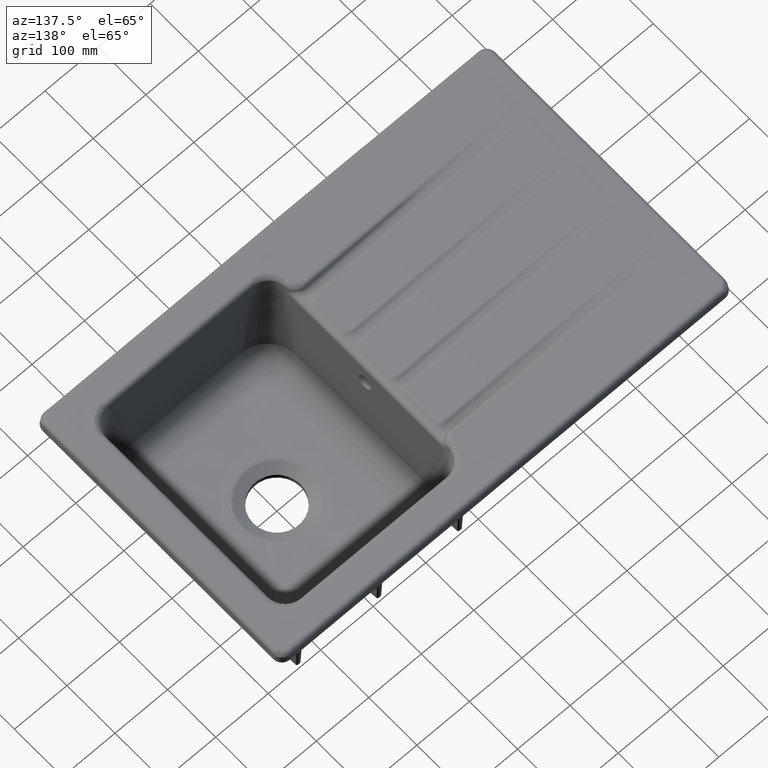
[diagram: clean part render]
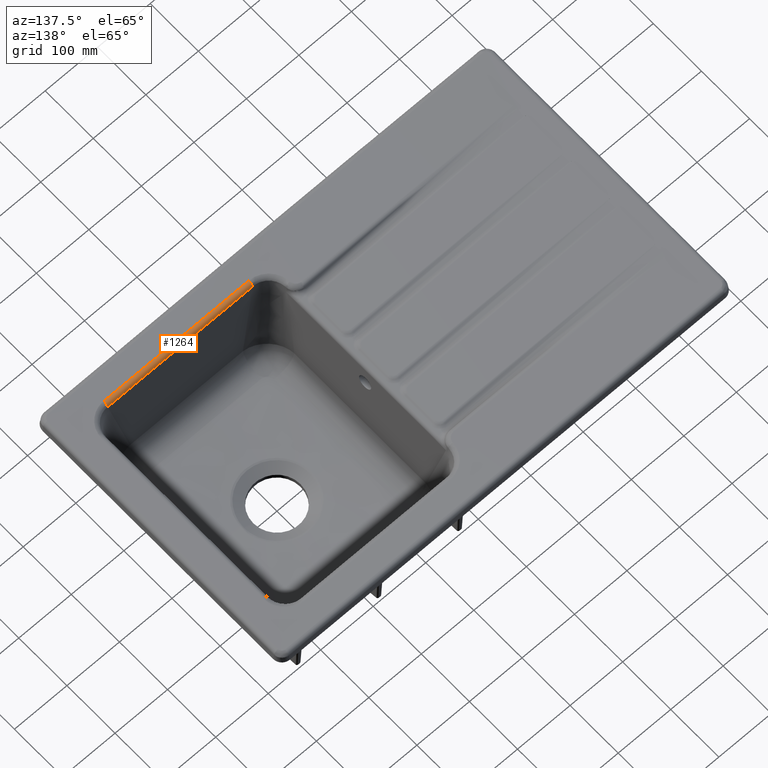
[diagram: same view with one face highlighted and labeled with its STEP entity id]
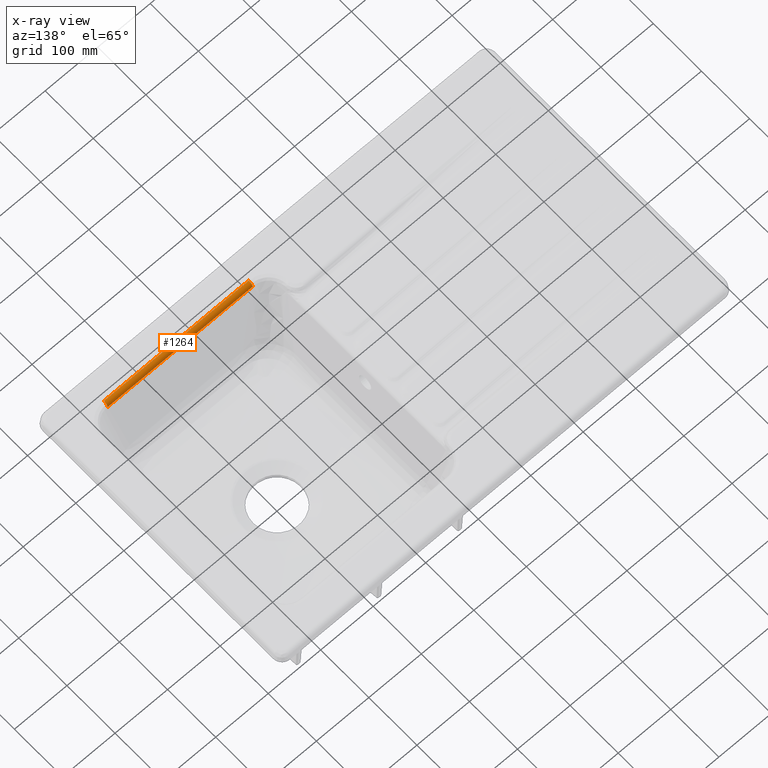
[diagram: x-ray of the same camera — body ghosted, the highlighted face saturated]
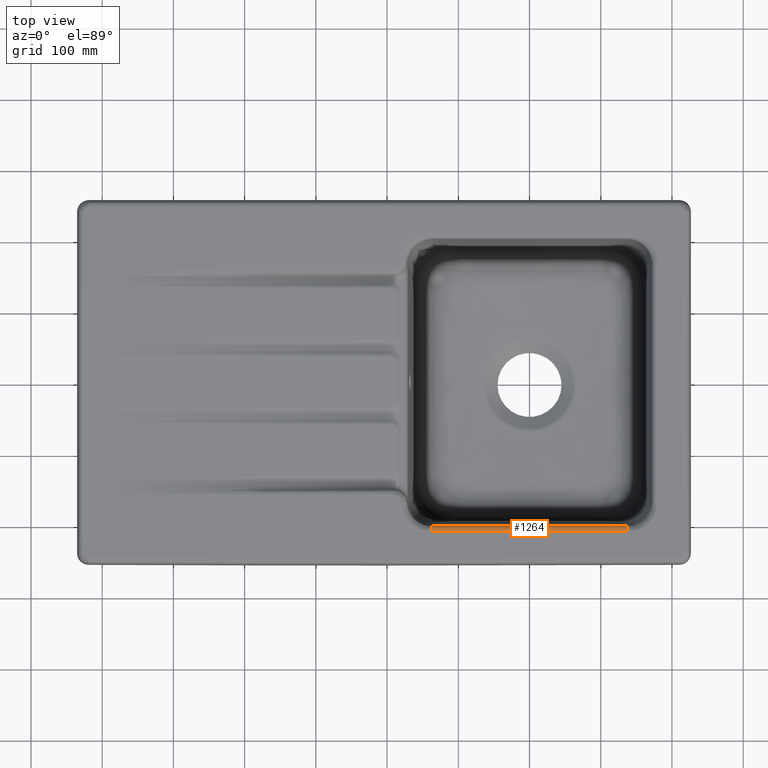
[diagram: same view with one face highlighted and labeled with its STEP entity id]
A machine part, auxiliary view. The second image highlights one B-rep face of the part: STEP entity #1264.
The next image is the same camera in x-ray: the body ghosted, the highlighted face saturated — about 0% of this face is hidden behind the body in this view.
A second angle (top view) of the same face is appended — the face is thin or edge-on in the first view.
In plain terms, the highlighted cylindrical surface (edge-blend (fillet) strip) has radius 7.9929 mm, axis along (1, -0, 0).
Its self-contained STEP definition (entity closure, byte-faithful):
#57=CYLINDRICAL_SURFACE('',#4636,7.99286400000001);
#182=LINE('',#8824,#296);
#296=VECTOR('',#4931,1.);
#465=FACE_OUTER_BOUND('',#1744,.T.);
#890=B_SPLINE_CURVE_WITH_KNOTS('',2,(#9457,#9458,#9459),.UNSPECIFIED.,.F.,
 .F.,(3,3),(0.,1.),.UNSPECIFIED.);
#1264=ADVANCED_FACE('',(#465),#57,.T.);
#1548=CIRCLE('',#4633,7.99286400000001);
#1549=CIRCLE('',#4635,7.99286400000001);
#1744=EDGE_LOOP('',(#2108,#2109,#2110,#2111));
#2108=ORIENTED_EDGE('',*,*,#3915,.F.);
#2109=ORIENTED_EDGE('',*,*,#3916,.F.);
#2110=ORIENTED_EDGE('',*,*,#3896,.T.);
#2111=ORIENTED_EDGE('',*,*,#3900,.T.);
#3461=VERTEX_POINT('',#6959);
#3470=VERTEX_POINT('',#8628);
#3472=VERTEX_POINT('',#8823);
#3480=VERTEX_POINT('',#9456);
#3896=EDGE_CURVE('',#3470,#3461,#1548,.T.);
#3900=EDGE_CURVE('',#3461,#3472,#182,.T.);
#3915=EDGE_CURVE('',#3480,#3472,#1549,.T.);
#3916=EDGE_CURVE('',#3470,#3480,#890,.T.);
#4633=AXIS2_PLACEMENT_3D('',#8627,#4929,#4930);
#4635=AXIS2_PLACEMENT_3D('',#9455,#4934,#4935);
#4636=AXIS2_PLACEMENT_3D('',#9460,#4936,#4937);
#4929=DIRECTION('',(-1.,2.0896198054052E-14,0.));
#4930=DIRECTION('',(-2.08352667696802E-14,-1.,0.));
#4931=DIRECTION('',(-1.,4.82705662880503E-16,6.16297582203915E-33));
#4934=DIRECTION('',(-1.,1.74134983783767E-15,0.));
#4935=DIRECTION('',(-3.47254446161337E-15,-1.,0.));
#4936=DIRECTION('',(1.,-4.82705662880503E-16,0.));
#4937=DIRECTION('',(0.,-1.,0.));
#6959=CARTESIAN_POINT('',(138.0188570841,-201.181477713513,203.3311666516));
#8627=CARTESIAN_POINT('',(138.0188570841,-209.143926452882,202.634542652998));
#8628=CARTESIAN_POINT('',(138.018857041035,-209.143926301324,210.627406652998));
#8823=CARTESIAN_POINT('',(-138.0188570841,-201.181477713513,203.331166651599));
#8824=CARTESIAN_POINT('',(-139.501028950105,-201.181477713513,203.331166651599));
#9455=CARTESIAN_POINT('',(-138.0188570841,-209.143926452882,202.634542652998));
#9456=CARTESIAN_POINT('',(-138.018768987782,-209.143876443312,210.627405989201));
#9457=CARTESIAN_POINT('',(138.0188570841,-209.143926335786,210.627406652998));
#9458=CARTESIAN_POINT('',(-5.67927145311842E-14,-209.143926394363,210.627406650825));
#9459=CARTESIAN_POINT('',(-138.0188570841,-209.143926452882,210.627406652998));
#9460=CARTESIAN_POINT('',(-172.34613,-209.143926452881,202.634542652998));